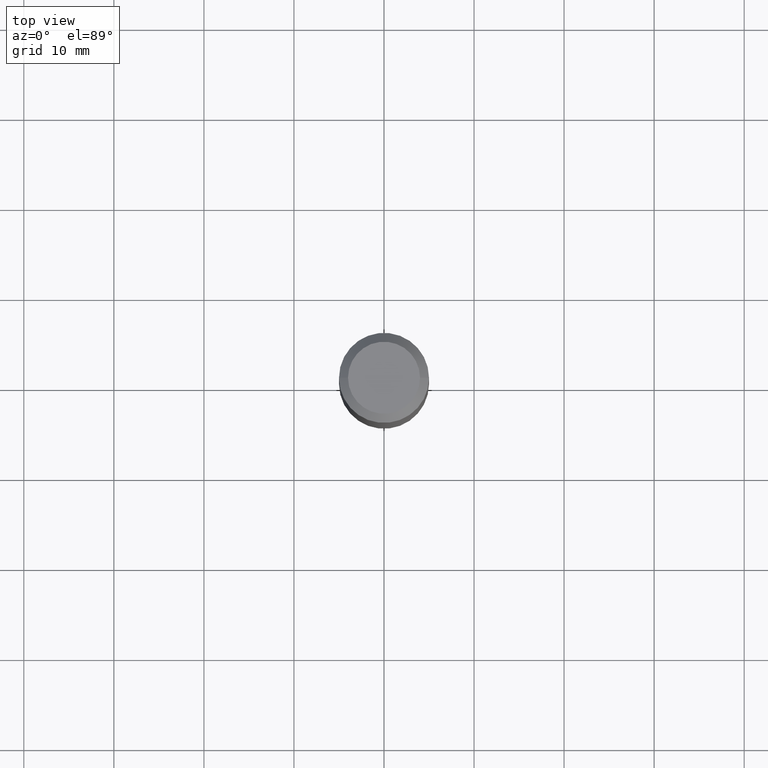
[diagram: clean part render]
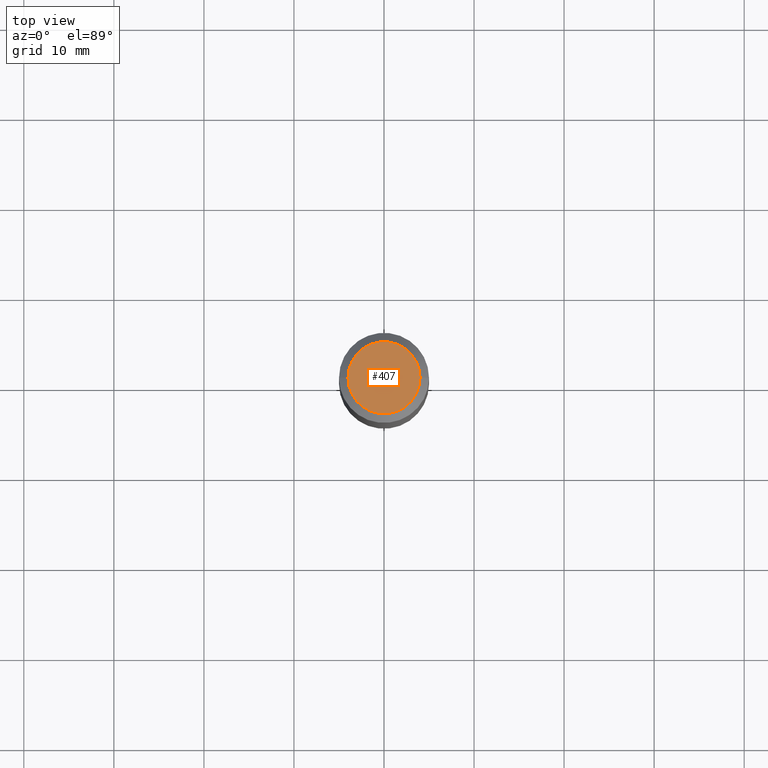
[diagram: same view with one face highlighted and labeled with its STEP entity id]
A machine part, top view. The second image highlights one B-rep face of the part: STEP entity #407.
In plain terms, the highlighted planar face has unit normal (0, -0, -1).
Its self-contained STEP definition (entity closure, byte-faithful):
#79 = DIRECTION ( 'NONE',  ( -1.000000000000000000, 6.982962677686265922E-15, -4.876176775795935793E-29 ) ) ;
#82 = VERTEX_POINT ( 'NONE', #196 ) ;
#118 = DIRECTION ( 'NONE',  ( 1.000000000000000000, -6.982962677686265922E-15, 4.876223630392693006E-29 ) ) ;
#119 = ORIENTED_EDGE ( 'NONE', *, *, #461, .T. ) ;
#162 = CARTESIAN_POINT ( 'NONE',  ( -9.427742298522567634E-47, 1.346031739168368355E-32, 3.855188123715870730E-18 ) ) ;
#196 = CARTESIAN_POINT ( 'NONE',  ( -0.1574800000000000089, 1.168406772637159618E-15, 3.855188123707939751E-18 ) ) ;
#238 = CARTESIAN_POINT ( 'NONE',  ( -9.427742298522567634E-47, 1.346031739168368355E-32, 3.855188123715870730E-18 ) ) ;
#253 = AXIS2_PLACEMENT_3D ( 'NONE', #319, #314, #79 ) ;
#278 = PLANE ( 'NONE',  #253 ) ;
#292 = AXIS2_PLACEMENT_3D ( 'NONE', #238, #513, #118 ) ;
#298 = ORIENTED_EDGE ( 'NONE', *, *, #471, .T. ) ;
#314 = DIRECTION ( 'NONE',  ( 2.438088387897960049E-29, -3.491481338843145188E-15, -1.000000000000000000 ) ) ;
#319 = CARTESIAN_POINT ( 'NONE',  ( -4.713871149261283817E-47, 6.730158695841841775E-33, 1.927594061857935365E-18 ) ) ;
#339 = EDGE_LOOP ( 'NONE', ( #119, #298 ) ) ;
#346 = CARTESIAN_POINT ( 'NONE',  ( 0.1574800000000000089, -1.284169937930321189E-15, 3.855188123724205385E-18 ) ) ;
#354 = CIRCLE ( 'NONE', #396, 0.1574800000000000089 ) ;
#358 = DIRECTION ( 'NONE',  ( -2.445468806185136597E-29, 3.491481338843145583E-15, 1.000000000000000000 ) ) ;
#363 = CIRCLE ( 'NONE', #292, 0.1574800000000000089 ) ;
#393 = DIRECTION ( 'NONE',  ( 1.000000000000000000, -6.982962677686265922E-15, 4.876223630392693006E-29 ) ) ;
#396 = AXIS2_PLACEMENT_3D ( 'NONE', #162, #358, #393 ) ;
#407 = ADVANCED_FACE ( 'NONE', ( #422 ), #278, .F. ) ;
#422 = FACE_OUTER_BOUND ( 'NONE', #339, .T. ) ;
#443 = VERTEX_POINT ( 'NONE', #346 ) ;
#461 = EDGE_CURVE ( 'NONE', #82, #443, #363, .T. ) ;
#471 = EDGE_CURVE ( 'NONE', #443, #82, #354, .T. ) ;
#513 = DIRECTION ( 'NONE',  ( -2.445468806185136597E-29, 3.491481338843145583E-15, 1.000000000000000000 ) ) ;